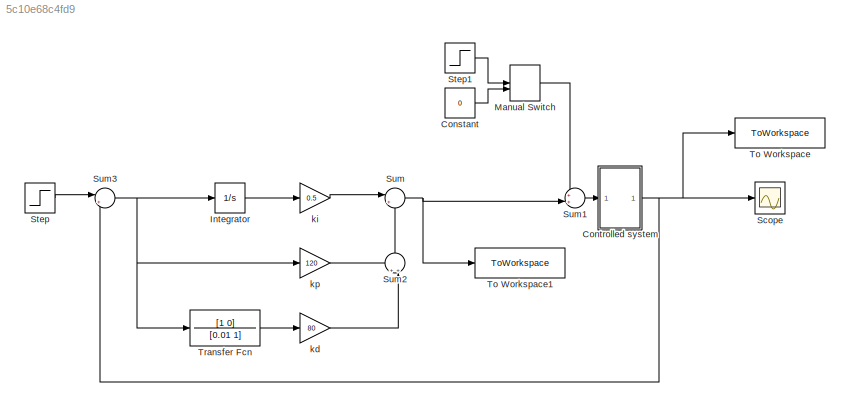
MODEL slx_5c10e68c4fd9
KIND model
CONFIG AbsTol = auto
CONFIG EnableMultiTasking = off
CONFIG FixedStep = auto
CONFIG MaxStep = auto
CONFIG MinStep = auto
CONFIG RelTol = 1e-3
CONFIG SampleTimeConstraint = Unconstrained
CONFIG SolverName = VariableStepAuto
CONFIG StartTime = 0.0
CONFIG StopTime = 10.0
BLOCK [Constant] Constant
  Value = 0
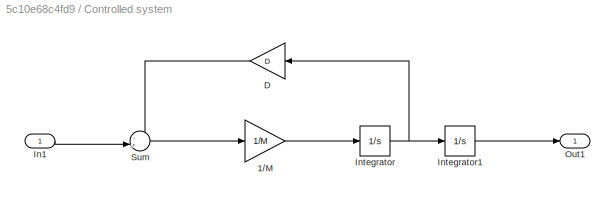
BLOCK [SubSystem] Controlled system
BLOCK [Gain] Controlled system/1//M
  Gain = 1/M
  Multiplication = Matrix(K*u) (u vector)
BLOCK [Gain] Controlled system/D
  Gain = D
  Multiplication = Matrix(K*u) (u vector)
BLOCK [Inport] Controlled system/In1
BLOCK [Integrator] Controlled system/Integrator
BLOCK [Integrator] Controlled system/Integrator1
BLOCK [Outport] Controlled system/Out1
BLOCK [Sum] Controlled system/Sum
  Inputs = -+|
BLOCK [Integrator] Integrator
BLOCK [ManualSwitch] Manual Switch
BLOCK [Scope] Scope
  Floating = off
  NumInputPorts = 1
  ScopeSpecificationString = Simulink.scopes.TimeScopeBlockCfg('CurrentConfiguration', extmgr.ConfigurationSet(extmgr.Configuration('Core','General UI',true),extmgr.Configuration('Core','Source UI',true),extmgr.Configuration('Sources','WiredSimulink',true),extmgr.Configuration('Visuals','Time Domain',true,'SerializedDisplays',{struct('MinYLimReal','-0.14299','MaxYLimReal','1.28688','YLabelReal','','MinYLimMag','0.00000','MaxY...<+1379ch>
BLOCK [Step] Step
  SampleTime = 0
  Time = 0
BLOCK [Step] Step1
  SampleTime = 0
BLOCK [Sum] Sum
  Inputs = |++
BLOCK [Sum] Sum1
  Inputs = ++|
BLOCK [Sum] Sum2
  Inputs = ++|
  NameLocation = right
BLOCK [Sum] Sum3
  Inputs = |+-
BLOCK [ToWorkspace] To Workspace
  FixptAsFi = on
  MaxDataPoints = inf
  SampleTime = -1
  SaveFormat = Timeseries
  VariableName = y
BLOCK [ToWorkspace] To Workspace1
  FixptAsFi = on
  MaxDataPoints = inf
  SampleTime = -1
  SaveFormat = Timeseries
  VariableName = u
BLOCK [TransferFcn] Transfer Fcn
  Denominator = [0.01 1]
  Numerator = [1 0]
BLOCK [Gain] kd
  Gain = 80
BLOCK [Gain] ki
  Gain = 0.5
BLOCK [Gain] kp
  Gain = 120
LINE Constant:1 -> Manual Switch:2
LINE Controlled system/1//M:1 -> Controlled system/Integrator:1
LINE Controlled system/D:1 -> Controlled system/Sum:1
LINE Controlled system/In1:1 -> Controlled system/Sum:2
LINE Controlled system/Integrator1:1 -> Controlled system/Out1:1
NET Controlled system/Integrator:1 -> Controlled system/D:1, Controlled system/Integrator1:1
LINE Controlled system/Sum:1 -> Controlled system/1//M:1
NET Controlled system:1 -> Scope:1, Sum3:2, To Workspace:1
LINE Integrator:1 -> ki:1
LINE Manual Switch:1 -> Sum1:1
LINE Step1:1 -> Manual Switch:1
LINE Step:1 -> Sum3:1
LINE Sum1:1 -> Controlled system:1
LINE Sum2:1 -> Sum:2
NET Sum3:1 -> Integrator:1, Transfer Fcn:1, kp:1
NET Sum:1 -> Sum1:2, To Workspace1:1
LINE Transfer Fcn:1 -> kd:1
LINE kd:1 -> Sum2:2
LINE ki:1 -> Sum:1
LINE kp:1 -> Sum2:1
note: NET lines group one-source signal fan-out (src -> all destinations, sorted); 1:1 wires keep LINE
